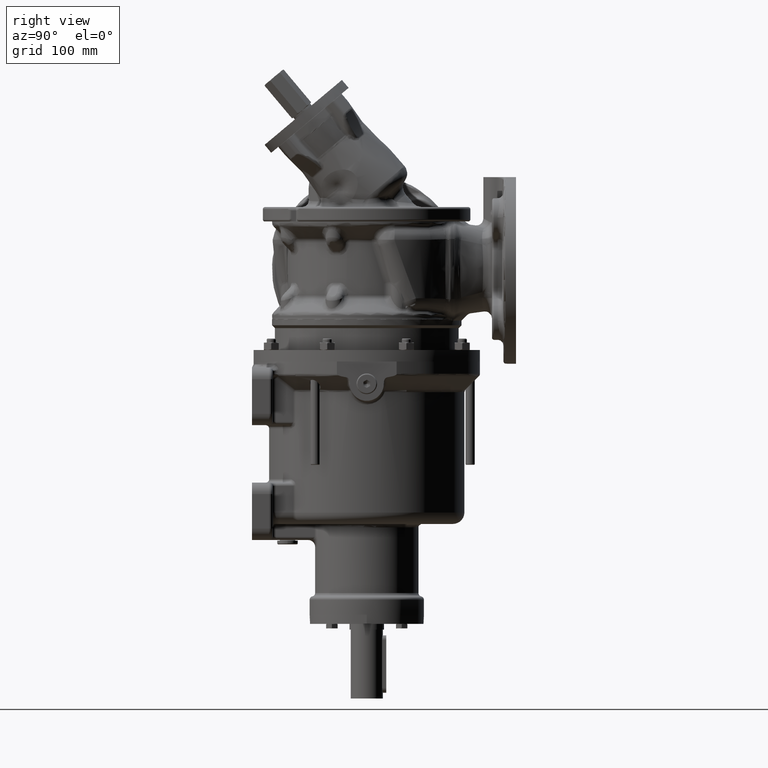
[diagram: clean part render]
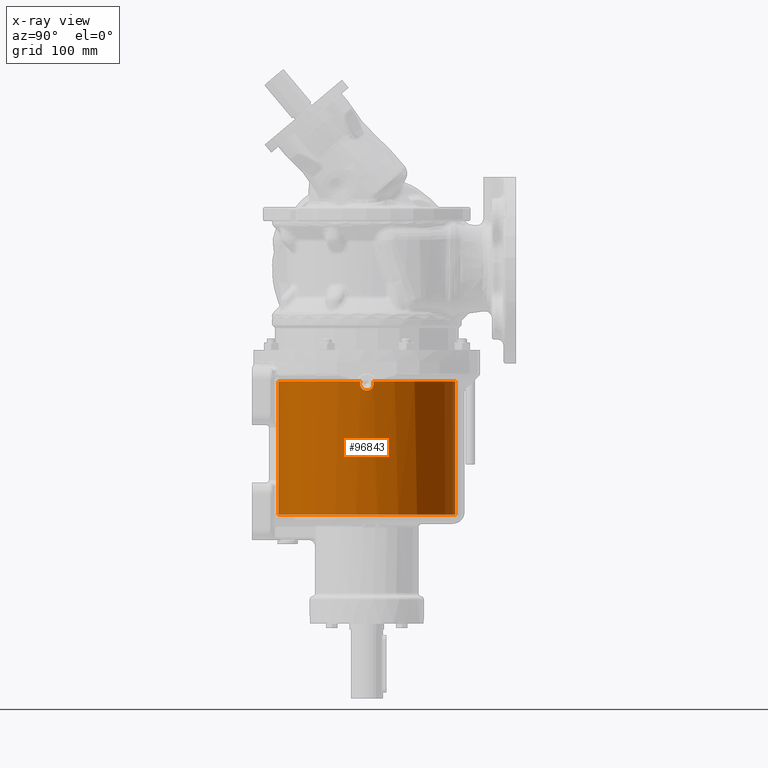
[diagram: x-ray — body ghosted, one internal face saturated and labeled with its STEP entity id]
A machine part, right view, then the same camera in x-ray: the body is ghosted and one INTERNAL B-rep face — a face not visible from any outside direction — is saturated and labeled: STEP entity #96843.
In plain terms, the highlighted cylindrical surface (partial cylindrical patch) has radius 77 mm, axis along (0, 0, 1).
Its self-contained STEP definition (entity closure, byte-faithful):
#33419=CARTESIAN_POINT('',(0.E0,0.E0,-1.335E2));
#33420=DIRECTION('',(0.E0,0.E0,-1.E0));
#33421=DIRECTION('',(0.E0,1.E0,0.E0));
#33422=AXIS2_PLACEMENT_3D('',#33419,#33420,#33421);
#33449=CARTESIAN_POINT('',(7.679967447848E1,-5.550675634551E0,-1.75E1));
#33450=CARTESIAN_POINT('',(7.679730482937E1,-5.583462324296E0,
-1.759099413995E1));
#33451=CARTESIAN_POINT('',(7.679285368457E1,-5.644468009616E0,
-1.777431823223E1));
#33452=CARTESIAN_POINT('',(7.678708043808E1,-5.722408580860E0,
-1.805360586508E1));
#33453=CARTESIAN_POINT('',(7.678227246862E1,-5.786511735566E0,
-1.833626839664E1));
#33454=CARTESIAN_POINT('',(7.677847378692E1,-5.836657904698E0,
-1.862170007430E1));
#33455=CARTESIAN_POINT('',(7.677572099002E1,-5.872728265792E0,
-1.890920389164E1));
#33456=CARTESIAN_POINT('',(7.677404007742E1,-5.894644397328E0,
-1.919810394378E1));
#33457=CARTESIAN_POINT('',(7.677344702210E1,-5.902357254722E0,
-1.948771616867E1));
#33458=CARTESIAN_POINT('',(7.677394743409E1,-5.895849919121E0,
-1.977735742322E1));
#33459=CARTESIAN_POINT('',(7.677553657470E1,-5.875136734767E0,
-2.006634418764E1));
#33460=CARTESIAN_POINT('',(7.677819937565E1,-5.840263606231E0,
-2.035399356260E1));
#33461=CARTESIAN_POINT('',(7.678191056659E1,-5.791308033667E0,
-2.063962457797E1));
#33462=CARTESIAN_POINT('',(7.678663486686E1,-5.728379484019E0,
-2.092255837114E1));
#33463=CARTESIAN_POINT('',(7.679232728201E1,-5.651619558371E0,
-2.120212005944E1));
#33464=CARTESIAN_POINT('',(7.679893346424E1,-5.561202490542E0,
-2.147763918856E1));
#33465=CARTESIAN_POINT('',(7.680639018367E1,-5.457335338166E0,
-2.174845170556E1));
#33466=CARTESIAN_POINT('',(7.681462587403E1,-5.340258321925E0,
-2.201390120857E1));
#33467=CARTESIAN_POINT('',(7.682356127271E1,-5.210245011159E0,
-2.227334073189E1));
#33468=CARTESIAN_POINT('',(7.683311016219E1,-5.067602166676E0,
-2.252613495509E1));
#33469=CARTESIAN_POINT('',(7.684318016754E1,-4.912669820441E0,
-2.277166177608E1));
#33470=CARTESIAN_POINT('',(7.685367367716E1,-4.745820463031E0,
-2.300931514121E1));
#33471=CARTESIAN_POINT('',(7.686448878186E1,-4.567458777115E0,
-2.323850661305E1));
#33472=CARTESIAN_POINT('',(7.687552032841E1,-4.378020242112E0,
-2.345866825003E1));
#33473=CARTESIAN_POINT('',(7.688666097104E1,-4.177970240482E0,
-2.366925432553E1));
#33474=CARTESIAN_POINT('',(7.689780228898E1,-3.967802341959E0,
-2.386974371833E1));
#33475=CARTESIAN_POINT('',(7.690883590420E1,-3.748036567168E0,
-2.405964180007E1));
#33476=CARTESIAN_POINT('',(7.691965458849E1,-3.519217654683E0,
-2.423848201978E1));
#33477=CARTESIAN_POINT('',(7.693015338071E1,-3.281912548185E0,
-2.440582773429E1));
#33478=CARTESIAN_POINT('',(7.694023062284E1,-3.036708766130E0,
-2.456127302367E1));
#33479=CARTESIAN_POINT('',(7.694978900025E1,-2.784211508101E0,
-2.470444411325E1));
#33480=CARTESIAN_POINT('',(7.695873646405E1,-2.525042062331E0,
-2.483499964995E1));
#33481=CARTESIAN_POINT('',(7.696698712890E1,-2.259835097577E0,
-2.495263147235E1));
#33482=CARTESIAN_POINT('',(7.697446205469E1,-1.989236908095E0,
-2.505706460614E1));
#33483=CARTESIAN_POINT('',(7.698108996139E1,-1.713903562666E0,-2.514805735E1));
#33484=CARTESIAN_POINT('',(7.698680785446E1,-1.434498338308E0,
-2.522540117946E1));
#33485=CARTESIAN_POINT('',(7.699156154765E1,-1.151692847970E0,
-2.528892036033E1));
#33486=CARTESIAN_POINT('',(7.699530612079E1,-8.661567127612E-1,
-2.533847181092E1));
#33487=CARTESIAN_POINT('',(7.699800626563E1,-5.785879015041E-1,
-2.537394460151E1));
#33488=CARTESIAN_POINT('',(7.699963657191E1,-2.895960484395E-1,
-2.539525979498E1));
#33489=CARTESIAN_POINT('',(7.7E1,-9.661918871171E-2,-2.54E1));
#33490=CARTESIAN_POINT('',(7.7E1,0.E0,-2.54E1));
#33492=CARTESIAN_POINT('',(0.E0,0.E0,-1.75E1));
#33493=DIRECTION('',(0.E0,0.E0,1.E0));
#33494=DIRECTION('',(0.E0,-1.E0,0.E0));
#33495=AXIS2_PLACEMENT_3D('',#33492,#33493,#33494);
#33497=CARTESIAN_POINT('',(0.E0,0.E0,-1.75E1));
#33498=DIRECTION('',(0.E0,0.E0,1.E0));
#33499=DIRECTION('',(9.973983698503E-1,7.208669655261E-2,0.E0));
#33500=AXIS2_PLACEMENT_3D('',#33497,#33498,#33499);
#33502=CARTESIAN_POINT('',(7.7E1,0.E0,-2.54E1));
#33503=CARTESIAN_POINT('',(7.7E1,9.661919041429E-2,-2.54E1));
#33504=CARTESIAN_POINT('',(7.699963657190E1,2.895960526749E-1,
-2.539525979480E1));
#33505=CARTESIAN_POINT('',(7.699800626560E1,5.785879054960E-1,
-2.537394460110E1));
#33506=CARTESIAN_POINT('',(7.699530612075E1,8.661567167438E-1,
-2.533847181035E1));
#33507=CARTESIAN_POINT('',(7.699156154757E1,1.151692853667E0,
-2.528892035921E1));
#33508=CARTESIAN_POINT('',(7.698680785436E1,1.434498343304E0,
-2.522540117819E1));
#33509=CARTESIAN_POINT('',(7.698108996128E1,1.713903567568E0,
-2.514805734853E1));
#33510=CARTESIAN_POINT('',(7.697446205456E1,1.989236913377E0,
-2.505706460423E1));
#33511=CARTESIAN_POINT('',(7.696698712877E1,2.259835101768E0,
-2.495263147062E1));
#33512=CARTESIAN_POINT('',(7.695873646388E1,2.525042067573E0,
-2.483499964747E1));
#33513=CARTESIAN_POINT('',(7.694978900011E1,2.784211512024E0,
-2.470444411114E1));
#33514=CARTESIAN_POINT('',(7.694023062266E1,3.036708770748E0,
-2.456127302091E1));
#33515=CARTESIAN_POINT('',(7.693015338055E1,3.281912552115E0,
-2.440582773164E1));
#33516=CARTESIAN_POINT('',(7.691965458832E1,3.519217658504E0,
-2.423848201696E1));
#33517=CARTESIAN_POINT('',(7.690883590401E1,3.748036571191E0,
-2.405964179675E1));
#33518=CARTESIAN_POINT('',(7.689780228883E1,3.967802344974E0,
-2.386974371561E1));
#33519=CARTESIAN_POINT('',(7.688666097082E1,4.177970244558E0,
-2.366925432144E1));
#33520=CARTESIAN_POINT('',(7.687552032827E1,4.378020244626E0,
-2.345866824724E1));
#33521=CARTESIAN_POINT('',(7.686448878165E1,4.567458780501E0,
-2.323850660893E1));
#33522=CARTESIAN_POINT('',(7.685367367701E1,4.745820465416E0,
-2.300931513796E1));
#33523=CARTESIAN_POINT('',(7.684318016738E1,4.912669822962E0,
-2.277166177232E1));
#33524=CARTESIAN_POINT('',(7.683311016203E1,5.067602169002E0,
-2.252613495115E1));
#33525=CARTESIAN_POINT('',(7.682356127259E1,5.210245012885E0,
-2.227334072869E1));
#33526=CARTESIAN_POINT('',(7.681462587387E1,5.340258324153E0,
-2.201390120381E1));
#33527=CARTESIAN_POINT('',(7.680639018359E1,5.457335339290E0,
-2.174845170285E1));
#33528=CARTESIAN_POINT('',(7.679893346411E1,5.561202492408E0,
-2.147763918332E1));
#33529=CARTESIAN_POINT('',(7.679232728194E1,5.651619559205E0,
-2.120212005661E1));
#33530=CARTESIAN_POINT('',(7.678663486677E1,5.728379485122E0,
-2.092255836677E1));
#33531=CARTESIAN_POINT('',(7.678191056654E1,5.791308034333E0,
-2.063962457445E1));
#33532=CARTESIAN_POINT('',(7.677819937561E1,5.840263606738E0,
-2.035399355929E1));
#33533=CARTESIAN_POINT('',(7.677553657467E1,5.875136735171E0,
-2.006634418320E1));
#33534=CARTESIAN_POINT('',(7.677394743408E1,5.895849919248E0,
-1.977735742094E1));
#33535=CARTESIAN_POINT('',(7.677344702211E1,5.902357254704E0,
-1.948771616320E1));
#33536=CARTESIAN_POINT('',(7.677404007743E1,5.894644397220E0,
-1.919810394188E1));
#33537=CARTESIAN_POINT('',(7.677572099005E1,5.872728265326E0,
-1.890920388685E1));
#33538=CARTESIAN_POINT('',(7.677847378695E1,5.836657904311E0,
-1.862170007192E1));
#33539=CARTESIAN_POINT('',(7.678227246867E1,5.786511734914E0,
-1.833626839326E1));
#33540=CARTESIAN_POINT('',(7.678708043815E1,5.722408579997E0,
-1.805360586181E1));
#33541=CARTESIAN_POINT('',(7.679285368458E1,5.644468009447E0,
-1.777431823180E1));
#33542=CARTESIAN_POINT('',(7.679730482937E1,5.583462324266E0,
-1.759099413987E1));
#33543=CARTESIAN_POINT('',(7.679967447848E1,5.550675634551E0,-1.75E1));
#33629=DIRECTION('',(0.E0,0.E0,-1.E0));
#33630=VECTOR('',#33629,1.16E2);
#33631=CARTESIAN_POINT('',(0.E0,7.7E1,-1.75E1));
#33632=LINE('',#33631,#33630);
#33633=DIRECTION('',(0.E0,0.E0,1.E0));
#33634=VECTOR('',#33633,1.16E2);
#33635=CARTESIAN_POINT('',(0.E0,-7.7E1,-1.335E2));
#33636=LINE('',#33635,#33634);
#42655=CARTESIAN_POINT('',(0.E0,7.7E1,-1.335E2));
#42656=CARTESIAN_POINT('',(0.E0,-7.7E1,-1.335E2));
#42657=VERTEX_POINT('',#42655);
#42658=VERTEX_POINT('',#42656);
#42671=CARTESIAN_POINT('',(0.E0,7.7E1,-1.75E1));
#42672=VERTEX_POINT('',#42671);
#42673=CARTESIAN_POINT('',(0.E0,-7.7E1,-1.75E1));
#42674=VERTEX_POINT('',#42673);
#42685=VERTEX_POINT('',#33449);
#42686=VERTEX_POINT('',#33490);
#42687=VERTEX_POINT('',#33543);
#96823=CARTESIAN_POINT('',(0.E0,0.E0,-2.37975E2));
#96824=DIRECTION('',(0.E0,0.E0,1.E0));
#96825=DIRECTION('',(0.E0,-1.E0,0.E0));
#96826=AXIS2_PLACEMENT_3D('',#96823,#96824,#96825);
#96827=CYLINDRICAL_SURFACE('',#96826,7.7E1);
#96829=ORIENTED_EDGE('',*,*,#96828,.F.);
#96831=ORIENTED_EDGE('',*,*,#96830,.F.);
#96833=ORIENTED_EDGE('',*,*,#96832,.F.);
#96834=ORIENTED_EDGE('',*,*,#96805,.F.);
#96836=ORIENTED_EDGE('',*,*,#96835,.F.);
#96838=ORIENTED_EDGE('',*,*,#96837,.F.);
#96840=ORIENTED_EDGE('',*,*,#96839,.F.);
#96841=EDGE_LOOP('',(#96829,#96831,#96833,#96834,#96836,#96838,#96840));
#96842=FACE_OUTER_BOUND('',#96841,.F.);
#96843=ADVANCED_FACE('',(#96842),#96827,.F.);
#33423=CIRCLE('',#33422,7.7E1);
#33491=B_SPLINE_CURVE_WITH_KNOTS('',3,(#33449,#33450,#33451,#33452,#33453,
#33454,#33455,#33456,#33457,#33458,#33459,#33460,#33461,#33462,#33463,#33464,
#33465,#33466,#33467,#33468,#33469,#33470,#33471,#33472,#33473,#33474,#33475,
#33476,#33477,#33478,#33479,#33480,#33481,#33482,#33483,#33484,#33485,#33486,
#33487,#33488,#33489,#33490),.UNSPECIFIED.,.F.,.F.,(4,1,1,1,1,1,1,1,1,1,1,1,1,1,
1,1,1,1,1,1,1,1,1,1,1,1,1,1,1,1,1,1,1,1,1,1,1,1,1,4),(0.E0,2.564102564103E-2,
5.128205128205E-2,7.692307692308E-2,1.025641025641E-1,1.282051282051E-1,
1.538461538462E-1,1.794871794872E-1,2.051282051282E-1,2.307692307692E-1,
2.564102564103E-1,2.820512820513E-1,3.076923076923E-1,3.333333333333E-1,
3.589743589744E-1,3.846153846154E-1,4.102564102564E-1,4.358974358974E-1,
4.615384615385E-1,4.871794871795E-1,5.128205128205E-1,5.384615384615E-1,
5.641025641026E-1,5.897435897436E-1,6.153846153846E-1,6.410256410256E-1,
6.666666666667E-1,6.923076923077E-1,7.179487179487E-1,7.435897435897E-1,
7.692307692308E-1,7.948717948718E-1,8.205128205128E-1,8.461538461538E-1,
8.717948717949E-1,8.974358974359E-1,9.230769230769E-1,9.487179487179E-1,
9.743589743590E-1,1.E0),.UNSPECIFIED.);
#33496=CIRCLE('',#33495,7.7E1);
#33501=CIRCLE('',#33500,7.7E1);
#33544=B_SPLINE_CURVE_WITH_KNOTS('',3,(#33502,#33503,#33504,#33505,#33506,
#33507,#33508,#33509,#33510,#33511,#33512,#33513,#33514,#33515,#33516,#33517,
#33518,#33519,#33520,#33521,#33522,#33523,#33524,#33525,#33526,#33527,#33528,
#33529,#33530,#33531,#33532,#33533,#33534,#33535,#33536,#33537,#33538,#33539,
#33540,#33541,#33542,#33543),.UNSPECIFIED.,.F.,.F.,(4,1,1,1,1,1,1,1,1,1,1,1,1,1,
1,1,1,1,1,1,1,1,1,1,1,1,1,1,1,1,1,1,1,1,1,1,1,1,1,4),(0.E0,2.564102564103E-2,
5.128205128205E-2,7.692307692308E-2,1.025641025641E-1,1.282051282051E-1,
1.538461538462E-1,1.794871794872E-1,2.051282051282E-1,2.307692307692E-1,
2.564102564103E-1,2.820512820513E-1,3.076923076923E-1,3.333333333333E-1,
3.589743589744E-1,3.846153846154E-1,4.102564102564E-1,4.358974358974E-1,
4.615384615385E-1,4.871794871795E-1,5.128205128205E-1,5.384615384615E-1,
5.641025641026E-1,5.897435897436E-1,6.153846153846E-1,6.410256410256E-1,
6.666666666667E-1,6.923076923077E-1,7.179487179487E-1,7.435897435897E-1,
7.692307692308E-1,7.948717948718E-1,8.205128205128E-1,8.461538461538E-1,
8.717948717949E-1,8.974358974359E-1,9.230769230769E-1,9.487179487179E-1,
9.743589743590E-1,1.E0),.UNSPECIFIED.);
#96805=EDGE_CURVE('',#42657,#42658,#33423,.T.);
#96828=EDGE_CURVE('',#42685,#42686,#33491,.T.);
#96830=EDGE_CURVE('',#42674,#42685,#33496,.T.);
#96832=EDGE_CURVE('',#42658,#42674,#33636,.T.);
#96835=EDGE_CURVE('',#42672,#42657,#33632,.T.);
#96837=EDGE_CURVE('',#42687,#42672,#33501,.T.);
#96839=EDGE_CURVE('',#42686,#42687,#33544,.T.);